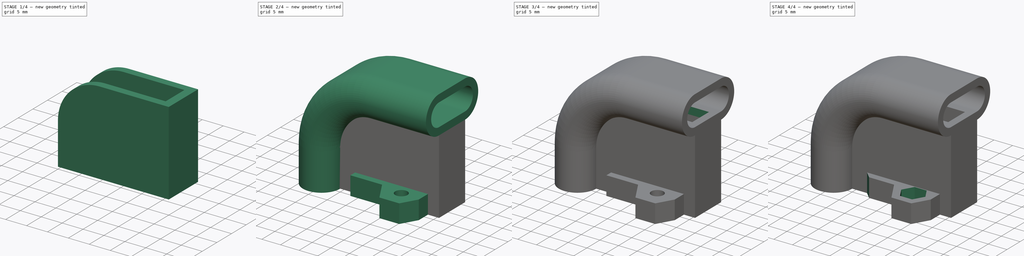
[diagram: build sequence overview — one tinted view per stage of 4, left to right]
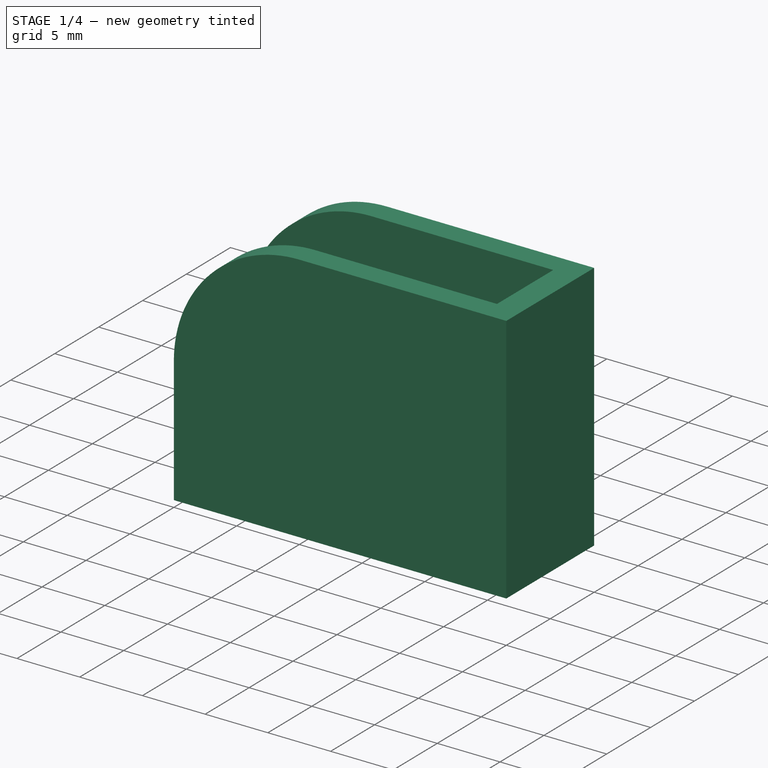
[diagram: stage 1 of 4 — iso view after this stage's code; geometry added in this stage tinted green]
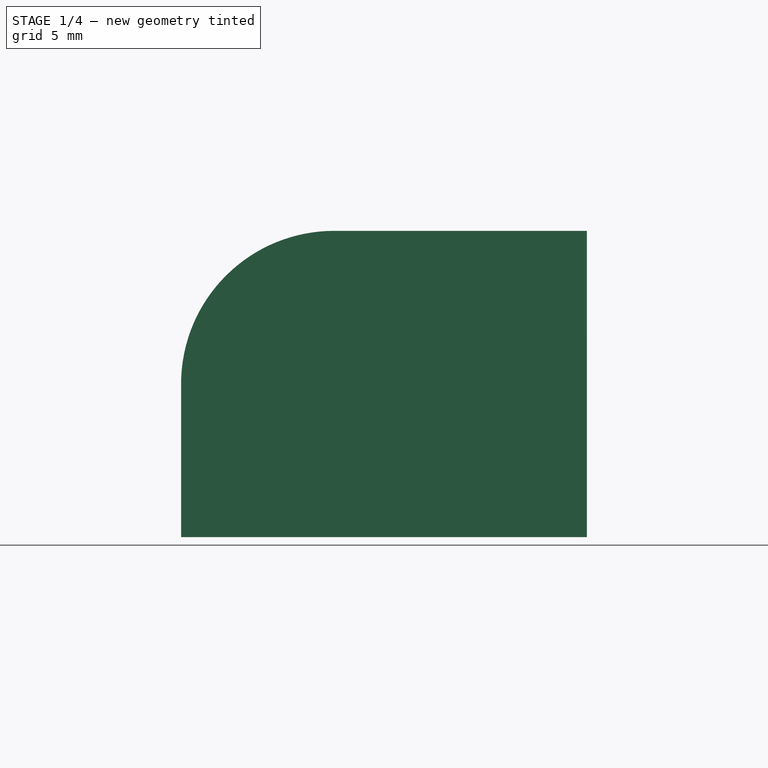
[diagram: stage 1 of 4 — front view after this stage's code; geometry added in this stage tinted green]
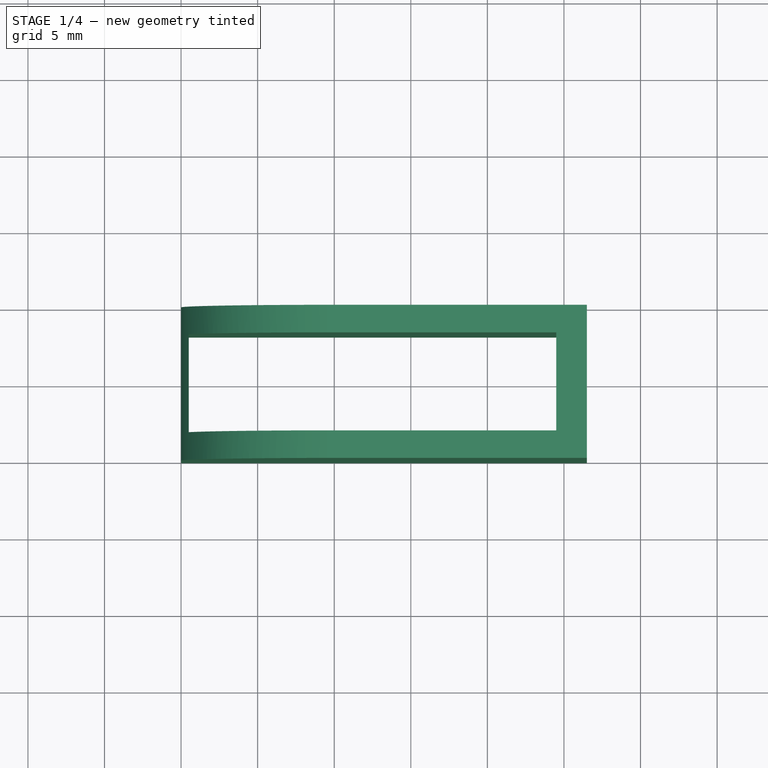
[diagram: stage 1 of 4 — top view after this stage's code; geometry added in this stage tinted green]
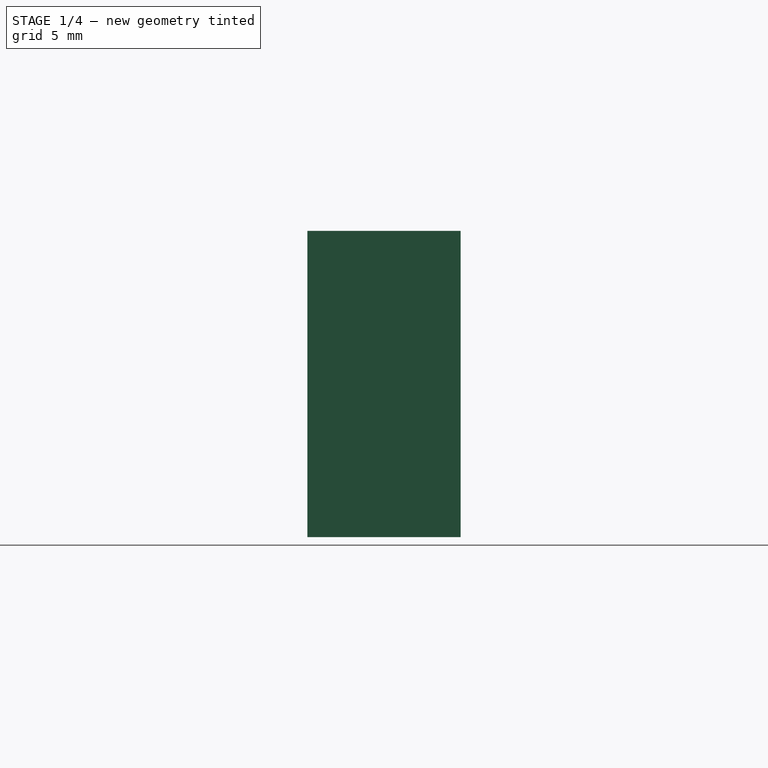
[diagram: stage 1 of 4 — right view after this stage's code; geometry added in this stage tinted green]
FCSTD DOCUMENT  (FreeCAD 0.19R24276 (Git))
Label: Z-axis_endstop_support
License: All rights reserved
LicenseURL: http://en.wikipedia.org/wiki/All_rights_reserved
objects: Sketcher::SketchObject×8, PartDesign::Pocket×4, PartDesign::Pad×2, PartDesign::AdditivePipe×1, PartDesign::Mirrored×1, PartDesign::Fillet×1, PartDesign::Chamfer×1, PartDesign::Body×1
note: 28 computed .brp shape members not serialized (recipe doc carries the construction recipe); baked Part::Feature solids carry a one-line shape summary decoded from their .brp

FEATURE [Sketcher::SketchObject] Sketch
  FullyConstrained = true
  MapMode = 5
  Support = -> [XY_Plane]
  sketch-geometry (8):
    g0: LineSegment StartX=5 StartY=5 StartZ=0 EndX=31.5 EndY=5 EndZ=0
    g1: LineSegment StartX=31.5 StartY=5 StartZ=0 EndX=31.5 EndY=-5 EndZ=0
    g2: LineSegment StartX=31.5 StartY=-5 StartZ=0 EndX=5 EndY=-5 EndZ=0
    g3: LineSegment StartX=29.5 StartY=3.2 StartZ=0 EndX=5.5 EndY=3.2 EndZ=0
    g4: LineSegment StartX=5.5 StartY=3.2 StartZ=0 EndX=5.5 EndY=-3.2 EndZ=0
    g5: LineSegment StartX=5.5 StartY=-3.2 StartZ=0 EndX=29.5 EndY=-3.2 EndZ=0
    g6: LineSegment StartX=29.5 StartY=-3.2 StartZ=0 EndX=29.5 EndY=3.2 EndZ=0
    g7: LineSegment StartX=5 StartY=5 StartZ=0 EndX=5 EndY=-5 EndZ=0
  constraints (22):
    c: Horizontal(g0)
    c: Coincident(g0,g1)
    c: Vertical(g1)
    c: Coincident(g1,g2)
    c: Horizontal(g2)
    c: Coincident(g3,g4)
    c: Coincident(g4,g5)
    c: Coincident(g5,g6)
    c: Coincident(g6,g3)
    c: Horizontal(g3)
    c: Horizontal(g5)
    c: Vertical(g6)
    c: Symmetric(g3,g4,g-1)
    c: DistanceX(g5,g1) = 2
    c: DistanceY(g6,g6) = 6.4
    c: Coincident(g7,g0)
    c: Coincident(g7,g2)
    c: DistanceX(g2) = 5
    c: Symmetric(g0,g2,g-1)
    c: DistanceY(g7,g7) = 10
    c: DistanceX(g5,g5) = 24
    c: DistanceX(g2,g4) = 0.5
FEATURE [PartDesign::Pad] Pad
  Direction = (1,1,1)
  Length = 20
  Length2 = 100
  Profile = -> Sketch
  Type = 0
FEATURE [Sketcher::SketchObject] Sketch001
  FullyConstrained = true
  MapMode = 5
  Placement = pos=(0,0,0) rot=(1,0,0;3.14159rad)
  Support = -> [Pad]
  sketch-geometry (8):
    g0: ArcOfCircle CenterX=0 CenterY=5 CenterZ=0 NormalX=0 NormalY=0 NormalZ=1 AngleXU=0 Radius=5 StartAngle=1e-16 EndAngle=3.14159
    g1: ArcOfCircle CenterX=0 CenterY=-5 CenterZ=0 NormalX=0 NormalY=0 NormalZ=1 AngleXU=0 Radius=5 StartAngle=3.14159 EndAngle=6.28319
    g2: LineSegment StartX=-5 StartY=5 StartZ=0 EndX=-5 EndY=-5 EndZ=0
    g3: LineSegment StartX=5 StartY=5 StartZ=0 EndX=5 EndY=-5 EndZ=0
    g4: ArcOfCircle CenterX=0 CenterY=5 CenterZ=0 NormalX=0 NormalY=0 NormalZ=1 AngleXU=0 Radius=3 StartAngle=2e-16 EndAngle=3.14159
    g5: ArcOfCircle CenterX=0 CenterY=-5 CenterZ=0 NormalX=0 NormalY=0 NormalZ=1 AngleXU=0 Radius=3 StartAngle=3.14159 EndAngle=6.28319
    g6: LineSegment StartX=-3 StartY=5 StartZ=0 EndX=-3 EndY=-5 EndZ=0
    g7: LineSegment StartX=3 StartY=5 StartZ=0 EndX=3 EndY=-5 EndZ=0
  constraints (18):
    c: Tangent(g0,g3) = 1.5708
    c: Tangent(g0,g2) = -1.5708
    c: Tangent(g2,g1) = -1.5708
    c: Tangent(g3,g1) = 1.5708
    c: Vertical(g2)
    c: Equal(g0,g1)
    c: Symmetric(g0,g1,g-1)
    c: DistanceY(g2,g2) = 10
    c: Radius(g0) = 5
    c: Tangent(g4,g7) = 1.5708
    c: Tangent(g4,g6) = -1.5708
    c: Tangent(g6,g5) = -1.5708
    c: Tangent(g7,g5) = 1.5708
    c: Vertical(g6)
    c: Equal(g4,g5)
    c: Coincident(g4,g0)
    c: DistanceY(g6,g6) = 10
    c: Radius(g4) = 3
FEATURE [Sketcher::SketchObject] Sketch002
  FullyConstrained = true
  MapMode = 5
  Placement = pos=(0,0,0) rot=(1,0,0;1.5708rad)
  Support = -> [XZ_Plane]
  sketch-geometry (3):
    g0: ArcOfCircle CenterX=15 CenterY=9.99999 CenterZ=0 NormalX=0 NormalY=0 NormalZ=1 AngleXU=0 Radius=15 StartAngle=1.5708 EndAngle=3.14159
    g1: LineSegment StartX=15 StartY=25 StartZ=0 EndX=31.5 EndY=25 EndZ=0
    g2: LineSegment StartX=0 StartY=10 StartZ=0 EndX=0 EndY=0 EndZ=0
  constraints (9):
    c: Horizontal(g1)
    c: PointOnObject(g0,g-2)
    c: DistanceY(g0) = 10
    c: DistanceX(g1) = 31.5
    c: Tangent(g0,g-2)
    c: Tangent(g1,g0) = 1.5708
    c: DistanceY(g1) = 25
    c: Coincident(g2,g0)
    c: Coincident(g2,g-1)
FEATURE [Sketcher::SketchObject] Sketch003
  FullyConstrained = true
  MapMode = 5
  Placement = pos=(0,0,0) rot=(1,0,0;1.5708rad)
  Support = -> [XZ_Plane]
  sketch-geometry (7):
    g0: LineSegment StartX=5 StartY=0 StartZ=0 EndX=5 EndY=10 EndZ=0
    g1: LineSegment StartX=15 StartY=20 StartZ=0 EndX=35.5 EndY=20 EndZ=0
    g2: ArcOfCircle CenterX=15 CenterY=10 CenterZ=0 NormalX=0 NormalY=0 NormalZ=1 AngleXU=0 Radius=10 StartAngle=1.5708 EndAngle=3.14159
    g3: LineSegment StartX=35.5 StartY=20 StartZ=0 EndX=35.5 EndY=25 EndZ=0
    g4: LineSegment StartX=35.5 StartY=25 StartZ=0 EndX=0 EndY=25 EndZ=0
    g5: LineSegment StartX=0 StartY=25 StartZ=0 EndX=0 EndY=0 EndZ=0
    g6: LineSegment StartX=0 StartY=0 StartZ=0 EndX=5 EndY=0 EndZ=0
  constraints (19):
    c: Vertical(g0)
    c: Horizontal(g1)
    c: Tangent(g2,g0) = 1.5708
    c: Tangent(g2,g1) = 1.5708
    c: DistanceX(g1) = 35.5
    c: DistanceY(g0,g0) = 10
    c: DistanceY(g1) = 20
    c: Coincident(g1,g3)
    c: Coincident(g3,g4)
    c: Horizontal(g4)
    c: Coincident(g4,g5)
    c: Vertical(g5)
    c: Vertical(g3)
    c: DistanceY(g3,g3) = 5
    c: Coincident(g5,g-1)
    c: Coincident(g6,g5)
    c: Coincident(g6,g0)
    c: Horizontal(g6)
    c: DistanceX(g6,g6) = 5
FEATURE [PartDesign::Pocket] Pocket
  BaseFeature = -> Pad
  Length = 5
  Length2 = 100
  Midplane = true
  Profile = -> Sketch003
  Type = 1
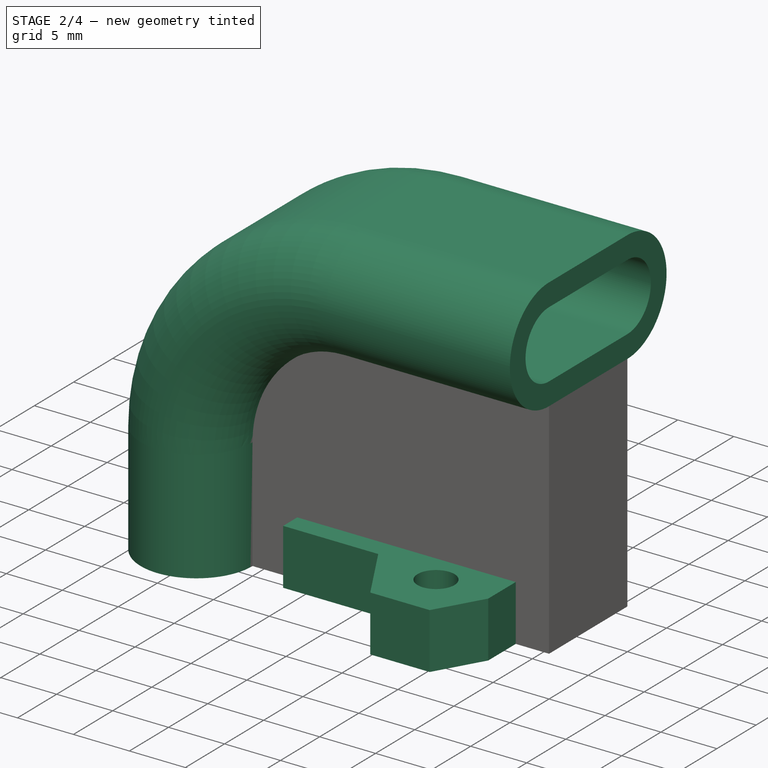
[diagram: stage 2 of 4 — iso view after this stage's code; geometry added in this stage tinted green]
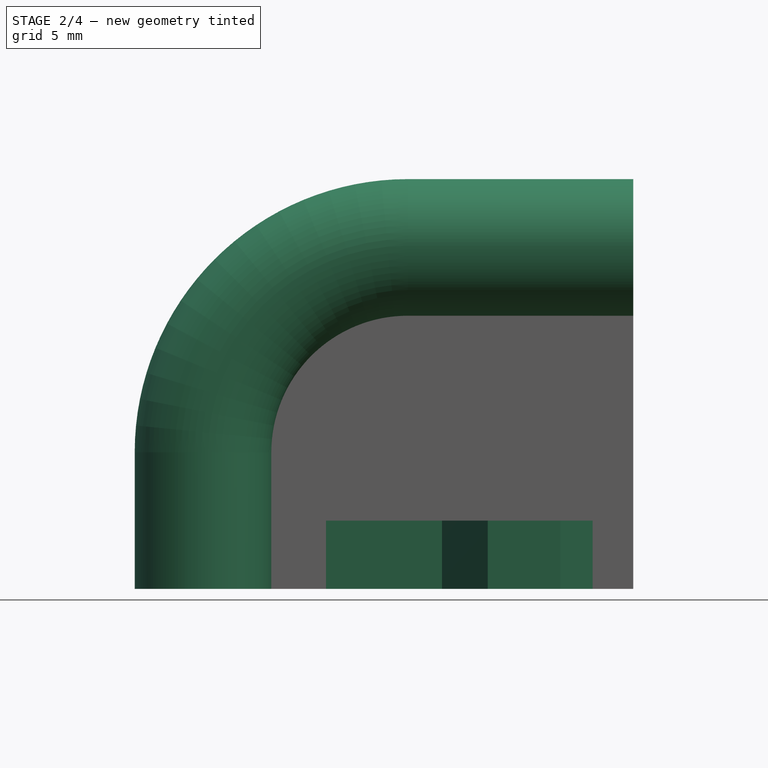
[diagram: stage 2 of 4 — front view after this stage's code; geometry added in this stage tinted green]
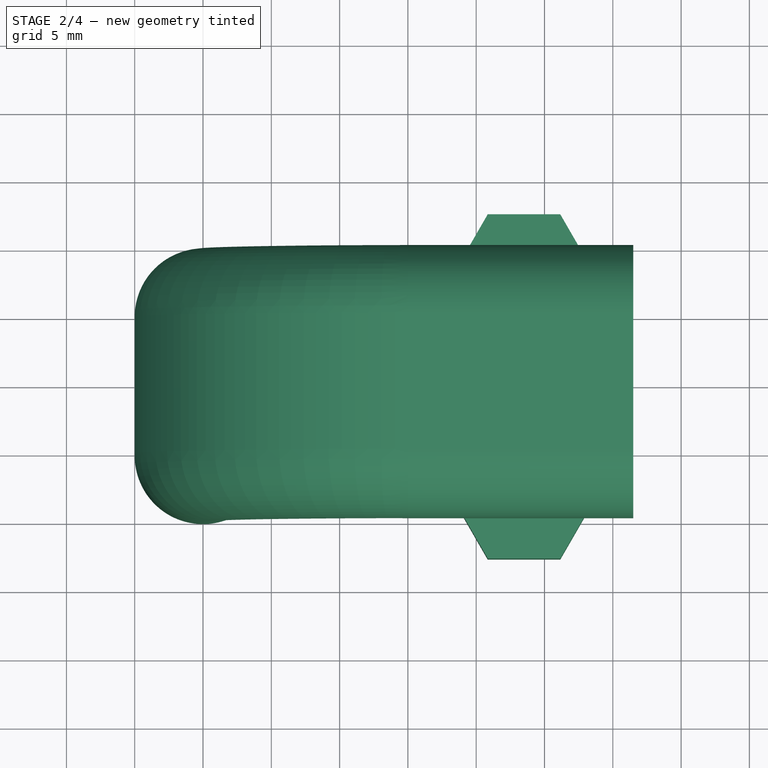
[diagram: stage 2 of 4 — top view after this stage's code; geometry added in this stage tinted green]
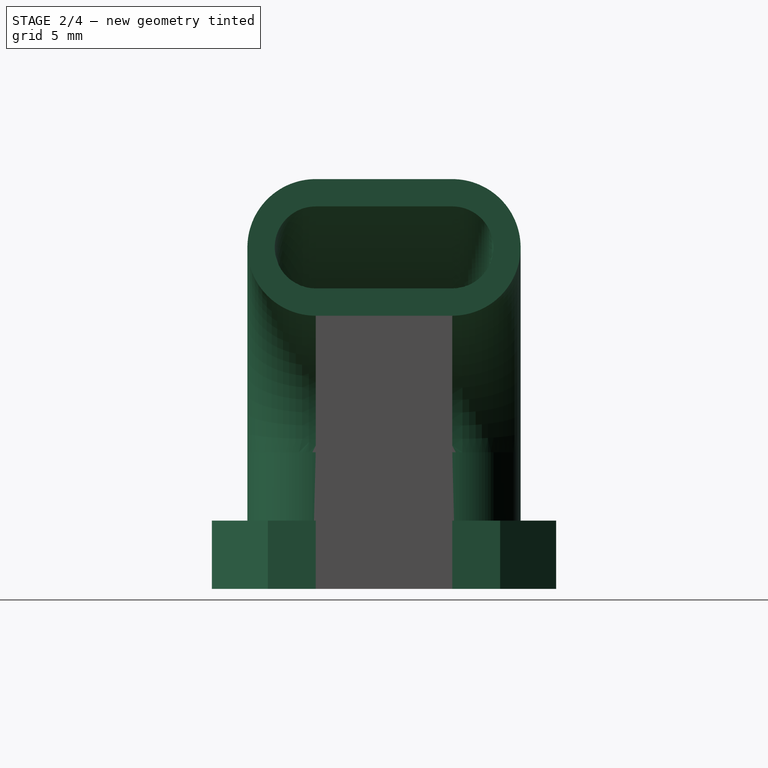
[diagram: stage 2 of 4 — right view after this stage's code; geometry added in this stage tinted green]
FEATURE [PartDesign::AdditivePipe] AdditivePipe
  AuxilleryCurvelinear = true
  AuxillerySpineTangent = false
  BaseFeature = -> Pocket
  Binormal = (0,0,0)
  Mode = 0
  Profile = -> Sketch001
  Spine = -> Sketch002
  SpineTangent = false
  Transformation = 0
  Transition = 0
FEATURE [Sketcher::SketchObject] Sketch004
  FullyConstrained = true
  MapMode = 5
  Placement = pos=(0,0,0) rot=(1,0,0;3.14159rad)
  Support = -> [AdditivePipe]
  sketch-geometry (17):
    g0: Circle CenterX=23.5 CenterY=8 CenterZ=0 NormalX=0 NormalY=0 NormalZ=1 AngleXU=0 Radius=1.65
    g1: LineSegment StartX=25.1166 StartY=5.2 StartZ=0 EndX=26.7332 EndY=8 EndZ=0
    g2: LineSegment StartX=26.7332 StartY=8 StartZ=0 EndX=25.1166 EndY=10.8 EndZ=0
    g3: LineSegment StartX=25.1166 StartY=10.8 StartZ=0 EndX=21.8834 EndY=10.8 EndZ=0
    g4: LineSegment StartX=21.8834 StartY=10.8 StartZ=0 EndX=20.2668 EndY=8 EndZ=0
    g5: LineSegment StartX=20.2668 StartY=8 StartZ=0 EndX=21.8834 EndY=5.2 EndZ=0
    g6: LineSegment StartX=21.8834 StartY=5.2 StartZ=0 EndX=25.1166 EndY=5.2 EndZ=0
    g7: Circle CenterX=23.5 CenterY=8 CenterZ=0 NormalX=0 NormalY=0 NormalZ=1 AngleXU=0 Radius=3.23316
    g8: LineSegment StartX=28.5229 StartY=8.5 StartZ=0 EndX=26.1558 EndY=12.6 EndZ=0
    g9: LineSegment StartX=26.1558 StartY=12.6 StartZ=0 EndX=20.8442 EndY=12.6 EndZ=0
    g10: LineSegment StartX=20.8442 StartY=12.6 StartZ=0 EndX=17.4956 EndY=6.8 EndZ=0
    g11: LineSegment StartX=17.4956 StartY=6.8 StartZ=0 EndX=9 EndY=6.8 EndZ=0
    g12: LineSegment StartX=9 StartY=6.8 StartZ=0 EndX=9 EndY=5 EndZ=0
    g13: LineSegment StartX=9 StartY=5 StartZ=0 EndX=28.5229 EndY=5 EndZ=0
    g14: LineSegment StartX=28.5229 StartY=8.5 StartZ=0 EndX=28.5229 EndY=5 EndZ=0
    g15: LineSegment StartX=21.8834 StartY=10.8 StartZ=0 EndX=20.3246 EndY=11.7 EndZ=0
    g16: LineSegment StartX=26.7332 StartY=8 StartZ=0 EndX=28.292 EndY=8.9 EndZ=0
  constraints (46):
    c: Coincident(g1,g2)
    c: Coincident(g2,g3)
    c: Coincident(g3,g4)
    c: Coincident(g4,g5)
    c: Coincident(g5,g6)
    c: Coincident(g6,g1)
    c: Equal(g1, g2-g6) x5
    c: PointOnObject(g1,g7)
    c: PointOnObject(g2,g7)
    c: PointOnObject(g3,g7)
    c: PointOnObject(g4,g7)
    c: PointOnObject(g5,g7)
    c: PointOnObject(g6,g7)
    c: Coincident(g7,g0)
    c: Horizontal(g6)
    c: Coincident(g8,g9)
    c: Horizontal(g9)
    c: Coincident(g9,g10)
    c: Coincident(g10,g11)
    c: Horizontal(g11)
    c: Coincident(g11,g12)
    c: Vertical(g12)
    c: Coincident(g12,g13)
    c: Horizontal(g13)
    c: Parallel(g4,g10)
    c: Parallel(g2,g8)
    c: DistanceY(g2,g8) = 1.8
    c: Coincident(g14,g8)
    c: Coincident(g14,g13)
    c: Vertical(g14)
    c: DistanceY(g5,g3) = 5.6
    c: DistanceY(g0) = 8
    c: DistanceY(g12,g12) = 1.8
    c: Coincident(g15,g3)
    c: PointOnObject(g15,g10)
    c: Perpendicular(g10,g15)
    c: Distance(g15) = 1.8
    c: Coincident(g16,g1)
    c: PointOnObject(g16,g8)
    c: Perpendicular(g8,g16)
    c: Distance(g16) = 1.8
    c: DistanceX(g12) = 9
    c: DistanceX(g0) = 23.5
    c: Radius(g0) = 1.65
    c: DistanceY(g14,g14) = 3.5
    c: DistanceY(g13) = 5
FEATURE [PartDesign::Pad] Pad001
  BaseFeature = -> AdditivePipe
  Direction = (1,1,1)
  Length = 5
  Length2 = 100
  Profile = -> Sketch004
  Reversed = true
  Type = 0
FEATURE [PartDesign::Mirrored] Mirrored
  BaseFeature = -> Pad001
  MirrorPlane = -> XZ_Plane
  Originals = -> [Pad001]
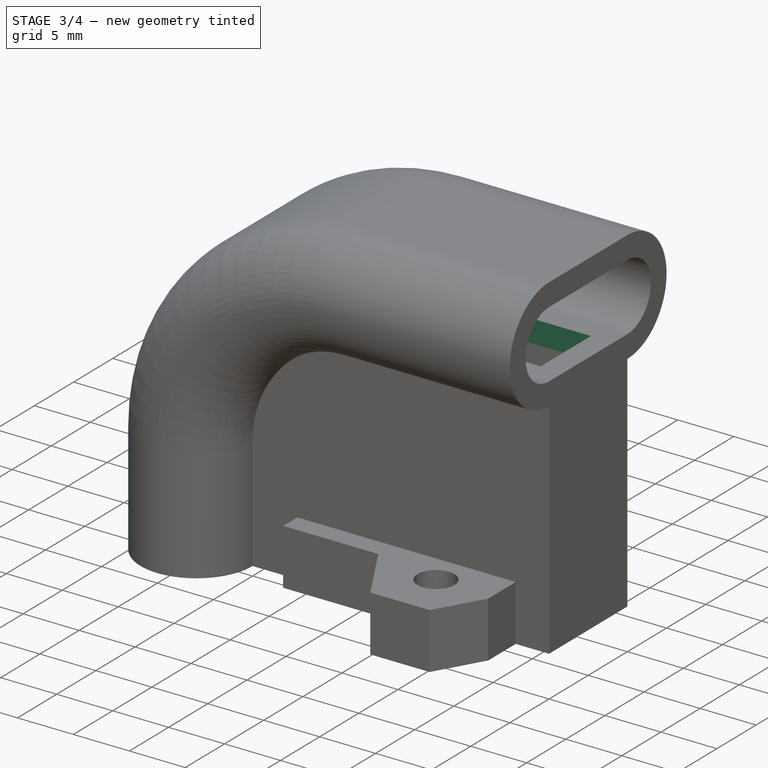
[diagram: stage 3 of 4 — iso view after this stage's code; geometry added in this stage tinted green]
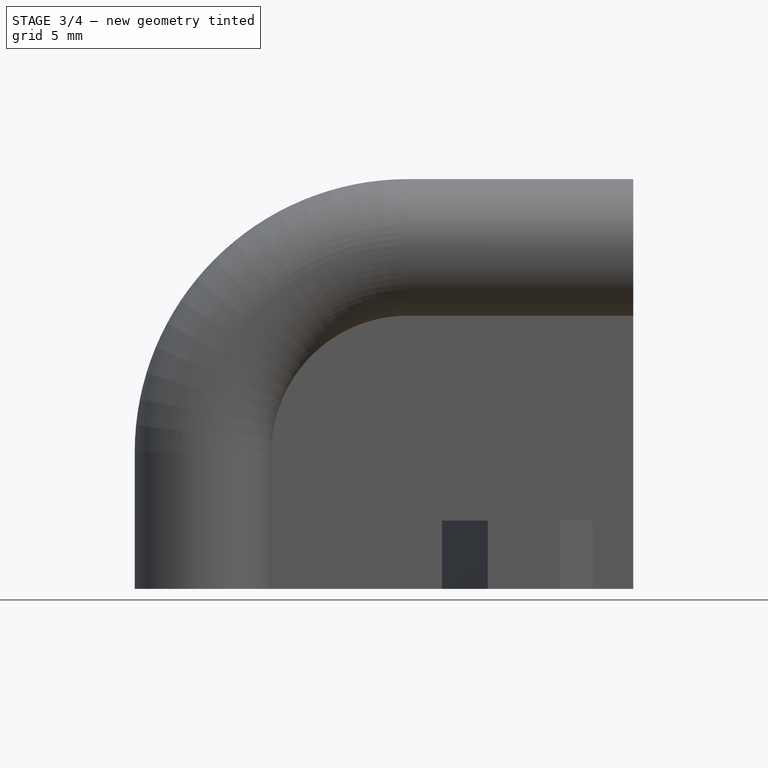
[diagram: stage 3 of 4 — front view after this stage's code; geometry added in this stage tinted green]
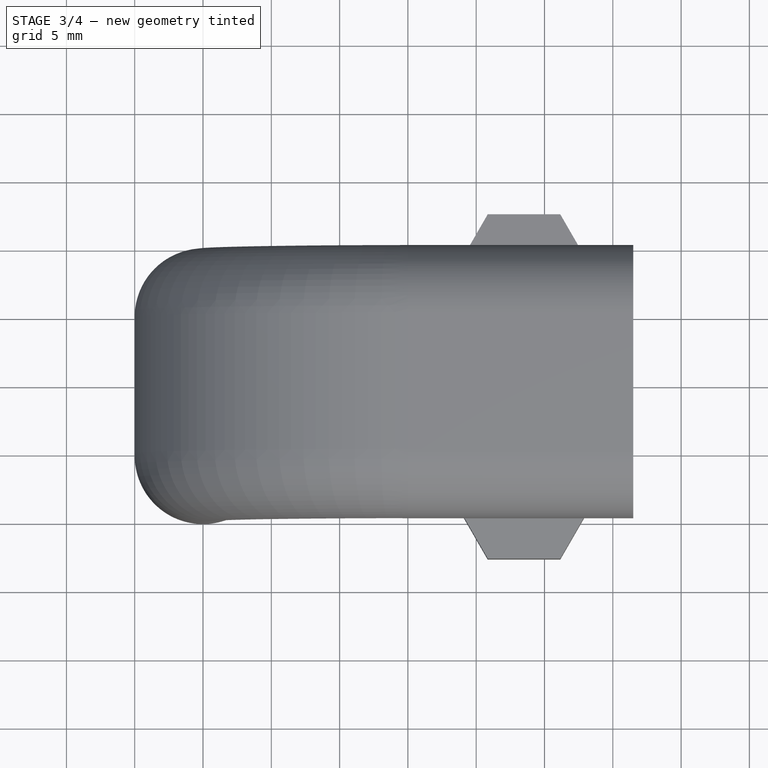
[diagram: stage 3 of 4 — top view after this stage's code; geometry added in this stage tinted green]
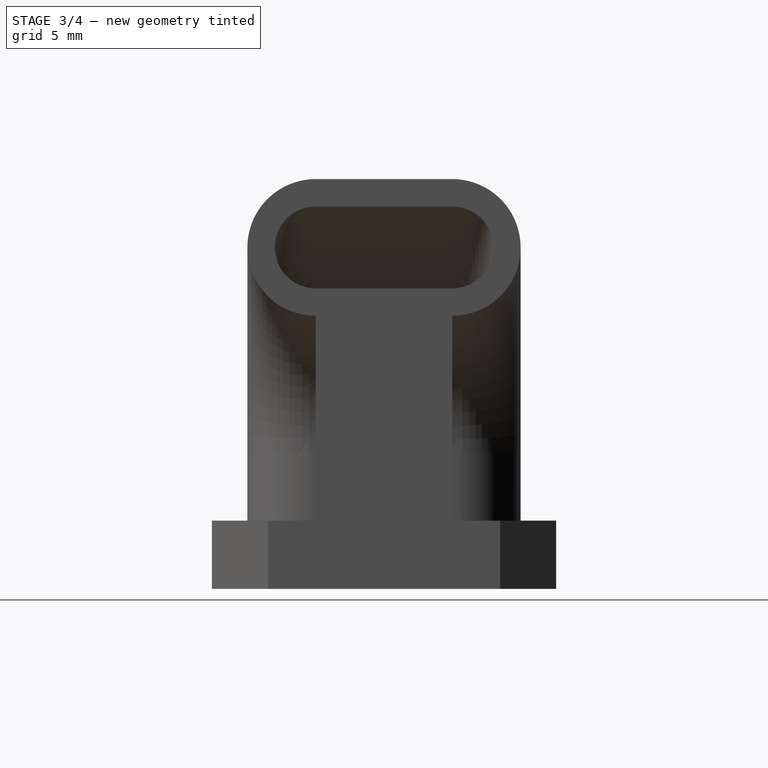
[diagram: stage 3 of 4 — right view after this stage's code; geometry added in this stage tinted green]
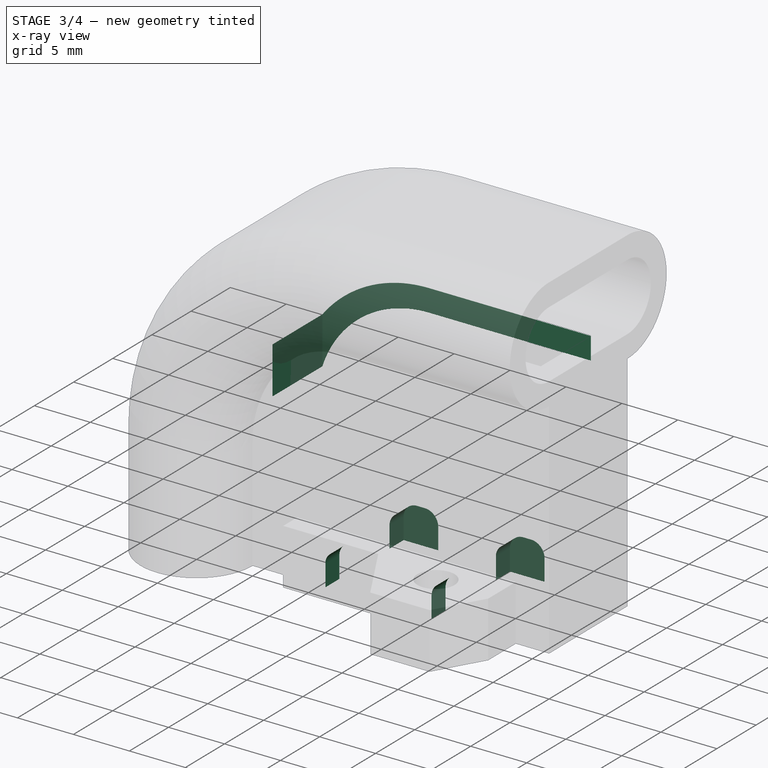
[diagram: stage 3 of 4 — x-ray composite at the iso view; earlier geometry ghosted, this stage's added geometry solid]
FEATURE [Sketcher::SketchObject] Sketch005
  FullyConstrained = true
  MapMode = 5
  Placement = pos=(0,0,0) rot=(1,0,0;3.14159rad)
  Support = -> [Mirrored]
  sketch-geometry (8):
    g0: LineSegment StartX=11.5 StartY=5 StartZ=0 EndX=14.6 EndY=5 EndZ=0
    g1: LineSegment StartX=14.6 StartY=5 StartZ=0 EndX=14.6 EndY=-5 EndZ=0
    g2: LineSegment StartX=14.6 StartY=-5 StartZ=0 EndX=11.5 EndY=-5 EndZ=0
    g3: LineSegment StartX=11.5 StartY=-5 StartZ=0 EndX=11.5 EndY=5 EndZ=0
    g4: LineSegment StartX=21 StartY=5 StartZ=0 EndX=24.1 EndY=5 EndZ=0
    g5: LineSegment StartX=24.1 StartY=5 StartZ=0 EndX=24.1 EndY=-5 EndZ=0
    g6: LineSegment StartX=24.1 StartY=-5 StartZ=0 EndX=21 EndY=-5 EndZ=0
    g7: LineSegment StartX=21 StartY=-5 StartZ=0 EndX=21 EndY=5 EndZ=0
  constraints (23):
    c: Coincident(g0,g1)
    c: Coincident(g1,g2)
    c: Coincident(g2,g3)
    c: Coincident(g3,g0)
    c: Horizontal(g0)
    c: Horizontal(g2)
    c: Vertical(g1)
    c: Coincident(g4,g5)
    c: Coincident(g5,g6)
    c: Coincident(g6,g7)
    c: Coincident(g7,g4)
    c: Horizontal(g4)
    c: Horizontal(g6)
    c: Vertical(g5)
    c: Vertical(g7)
    c: PointOnObject(g6,g2)
    c: Symmetric(g0,g2,g-1)
    c: Equal(g0,g4)
    c: DistanceX(g0,g4) = 9.5
    c: DistanceX(g2,g2) = 3.1
    c: DistanceY(g3,g3) = 10
    c: DistanceX(g2) = 11.5
    c: Equal(g7,g1)
FEATURE [PartDesign::Pocket] Pocket001
  BaseFeature = -> Mirrored
  Length = 3.1
  Length2 = 100
  Profile = -> Sketch005
  Type = 0
FEATURE [PartDesign::Fillet] Fillet
  Base = -> Pocket001 [Edge101,Edge75,Edge163,Edge165,Edge171,Edge162,Edge118,Edge116]
  BaseFeature = -> Pocket001
  Radius = 1.2
  SupportTransform = false
FEATURE [Sketcher::SketchObject] Sketch006
  FullyConstrained = true
  MapMode = 5
  Placement = pos=(0,0,0) rot=(1,0,0;3.14159rad)
  Support = -> [Fillet]
  sketch-geometry (4):
    g0: LineSegment StartX=5.5 StartY=3.2 StartZ=0 EndX=29.5 EndY=3.2 EndZ=0
    g1: LineSegment StartX=29.5 StartY=3.2 StartZ=0 EndX=29.5 EndY=-3.2 EndZ=0
    g2: LineSegment StartX=29.5 StartY=-3.2 StartZ=0 EndX=5.5 EndY=-3.2 EndZ=0
    g3: LineSegment StartX=5.5 StartY=-3.2 StartZ=0 EndX=5.5 EndY=3.2 EndZ=0
  constraints (11):
    c: Coincident(g0,g1)
    c: Coincident(g1,g2)
    c: Coincident(g2,g3)
    c: Coincident(g3,g0)
    c: Horizontal(g0)
    c: Horizontal(g2)
    c: Vertical(g1)
    c: DistanceY(g1,g1) = 6.4
    c: Symmetric(g2,g0,g-1)
    c: DistanceX(g2) = 5.5
    c: DistanceX(g2,g2) = 24
FEATURE [PartDesign::Pocket] Pocket002
  BaseFeature = -> Fillet
  Length = 22
  Length2 = 100
  Profile = -> Sketch006
  Type = 0
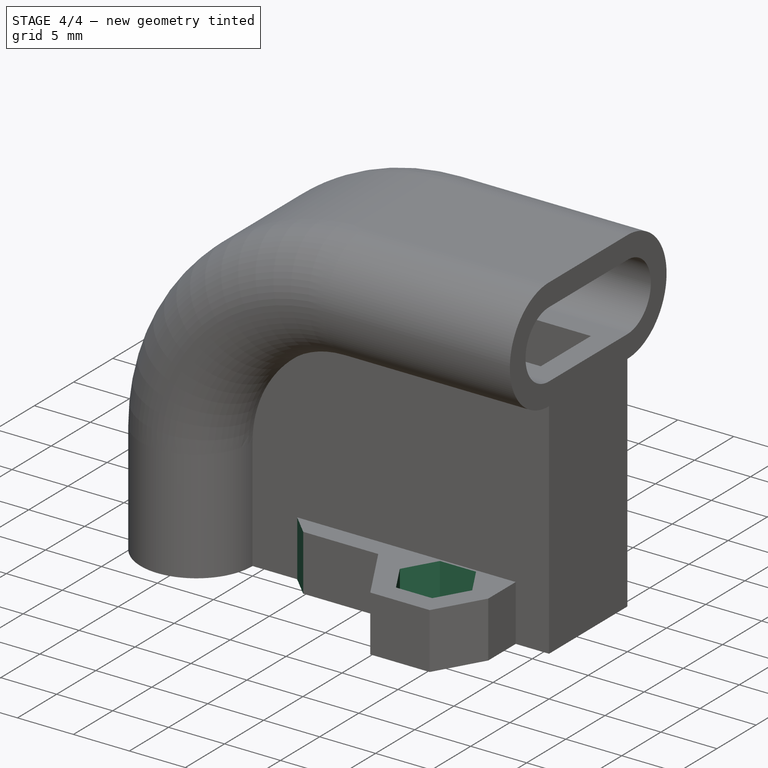
[diagram: stage 4 of 4 — iso view after this stage's code; geometry added in this stage tinted green]
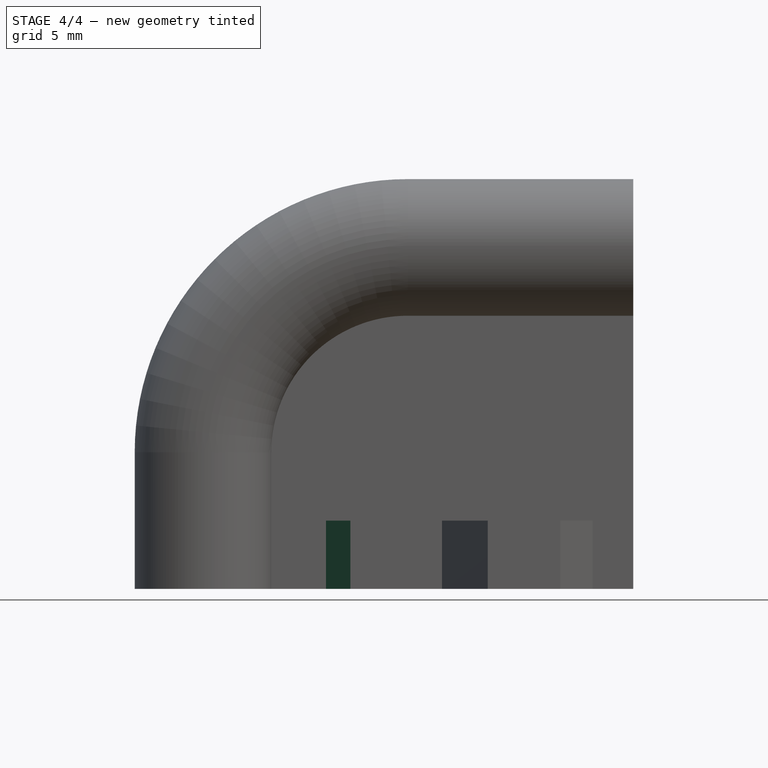
[diagram: stage 4 of 4 — front view after this stage's code; geometry added in this stage tinted green]
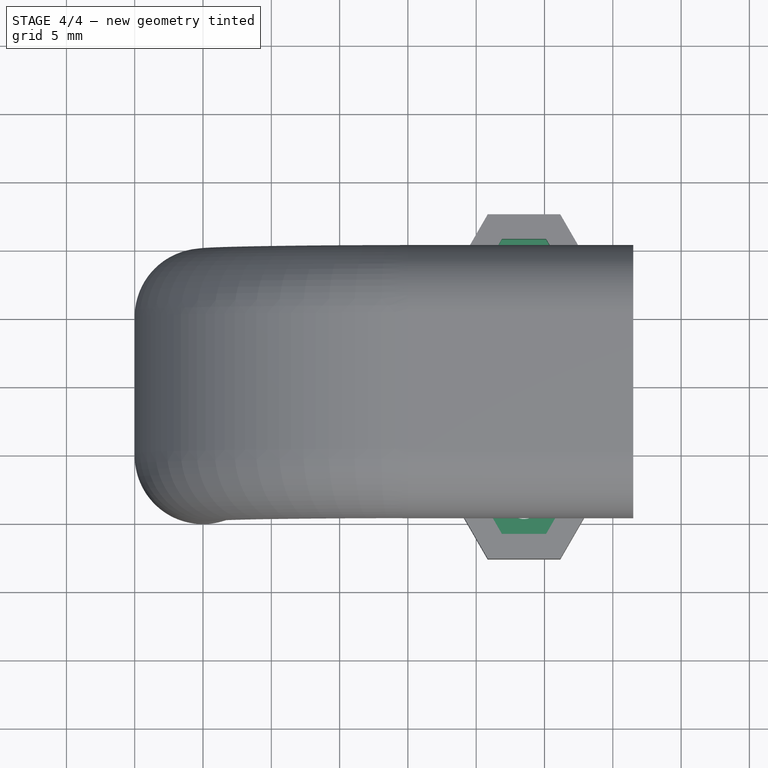
[diagram: stage 4 of 4 — top view after this stage's code; geometry added in this stage tinted green]
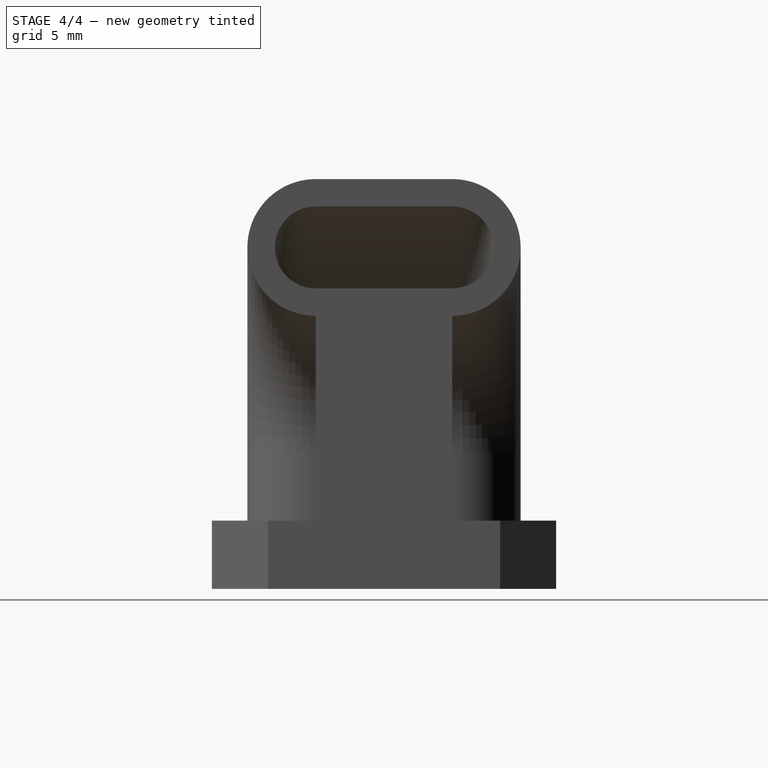
[diagram: stage 4 of 4 — right view after this stage's code; geometry added in this stage tinted green]
FEATURE [Sketcher::SketchObject] Sketch007
  FullyConstrained = true
  MapMode = 5
  Placement = pos=(0,0,5) rot=(0,0,1;0rad)
  Support = -> [Pocket002]
  sketch-geometry (14):
    g0: LineSegment StartX=26.7332 StartY=-8 StartZ=0 EndX=25.1166 EndY=-5.2 EndZ=0
    g1: LineSegment StartX=25.1166 StartY=-5.2 StartZ=0 EndX=21.8834 EndY=-5.2 EndZ=0
    g2: LineSegment StartX=21.8834 StartY=-5.2 StartZ=0 EndX=20.2668 EndY=-8 EndZ=0
    g3: LineSegment StartX=20.2668 StartY=-8 StartZ=0 EndX=21.8834 EndY=-10.8 EndZ=0
    g4: LineSegment StartX=21.8834 StartY=-10.8 StartZ=0 EndX=25.1166 EndY=-10.8 EndZ=0
    g5: LineSegment StartX=25.1166 StartY=-10.8 StartZ=0 EndX=26.7332 EndY=-8 EndZ=0
    g6: Circle CenterX=23.5 CenterY=-8 CenterZ=0 NormalX=0 NormalY=0 NormalZ=1 AngleXU=0 Radius=3.23316
    g7: LineSegment StartX=25.1166 StartY=5.2 StartZ=0 EndX=26.7332 EndY=8 EndZ=0
    g8: LineSegment StartX=26.7332 StartY=8 StartZ=0 EndX=25.1166 EndY=10.8 EndZ=0
    g9: LineSegment StartX=25.1166 StartY=10.8 StartZ=0 EndX=21.8834 EndY=10.8 EndZ=0
    g10: LineSegment StartX=21.8834 StartY=10.8 StartZ=0 EndX=20.2668 EndY=8 EndZ=0
    g11: LineSegment StartX=20.2668 StartY=8 StartZ=0 EndX=21.8834 EndY=5.2 EndZ=0
    g12: LineSegment StartX=21.8834 StartY=5.2 StartZ=0 EndX=25.1166 EndY=5.2 EndZ=0
    g13: Circle CenterX=23.5 CenterY=8 CenterZ=0 NormalX=0 NormalY=0 NormalZ=1 AngleXU=0 Radius=3.23316
  constraints (33):
    c: Coincident(g0,g1)
    c: Coincident(g1,g2)
    c: Coincident(g2,g3)
    c: Coincident(g3,g4)
    c: Coincident(g4,g5)
    c: Coincident(g5,g0)
    c: Equal(g0, g1-g5) x5
    c: PointOnObject(g0,g6)
    c: PointOnObject(g1,g6)
    c: PointOnObject(g2,g6)
    c: PointOnObject(g3,g6)
    c: PointOnObject(g4,g6)
    c: PointOnObject(g5,g6)
    c: Coincident(g7,g8)
    c: Coincident(g8,g9)
    c: Coincident(g9,g10)
    c: Coincident(g10,g11)
    c: Coincident(g11,g12)
    c: Coincident(g12,g7)
    c: Equal(g7, g8-g12) x5
    c: PointOnObject(g7,g13)
    c: PointOnObject(g8,g13)
    c: PointOnObject(g9,g13)
    c: PointOnObject(g10,g13)
    c: PointOnObject(g11,g13)
    c: PointOnObject(g12,g13)
    c: Horizontal(g12)
    c: Horizontal(g4)
    c: Symmetric(g6,g13,g-1)
    c: DistanceY(g6,g13) = 16
    c: DistanceY(g7,g8) = 5.6
    c: DistanceX(g6) = 23.5
    c: Equal(g6,g13)
FEATURE [PartDesign::Pocket] Pocket003
  BaseFeature = -> Pocket002
  Length = 3
  Length2 = 100
  Profile = -> Sketch007
  Type = 0
FEATURE [PartDesign::Chamfer] Chamfer
  Angle = 45
  Base = -> Pocket003 [Edge131,Edge192]
  BaseFeature = -> Pocket003
  ChamferType = 0
  FlipDirection = false
  Size = 1.79
  Size2 = 1
  SupportTransform = false
FEATURE [PartDesign::Body] Body
  Group = -> [Sketch,Pad,Sketch001,Sketch002,Sketch003,Pocket,AdditivePipe,Sketch004,Pad001,Mirrored,Sketch005,Pocket001,Fillet,Sketch006,Pocket002,Sketch007,Pocket003,Chamfer]
  Origin = -> Origin
  Tip = -> Chamfer
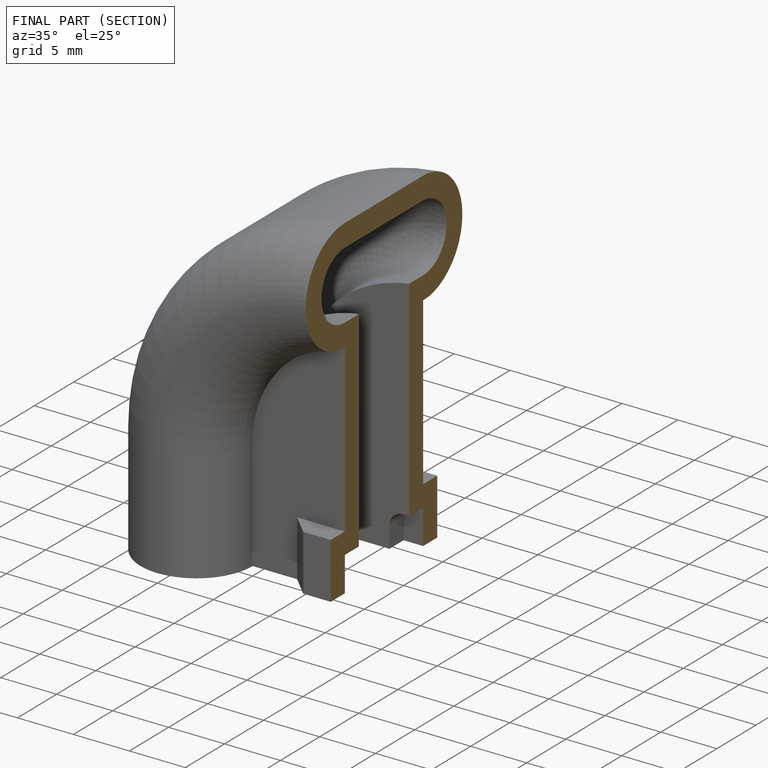
[diagram: finished part — half-section view (interior)]
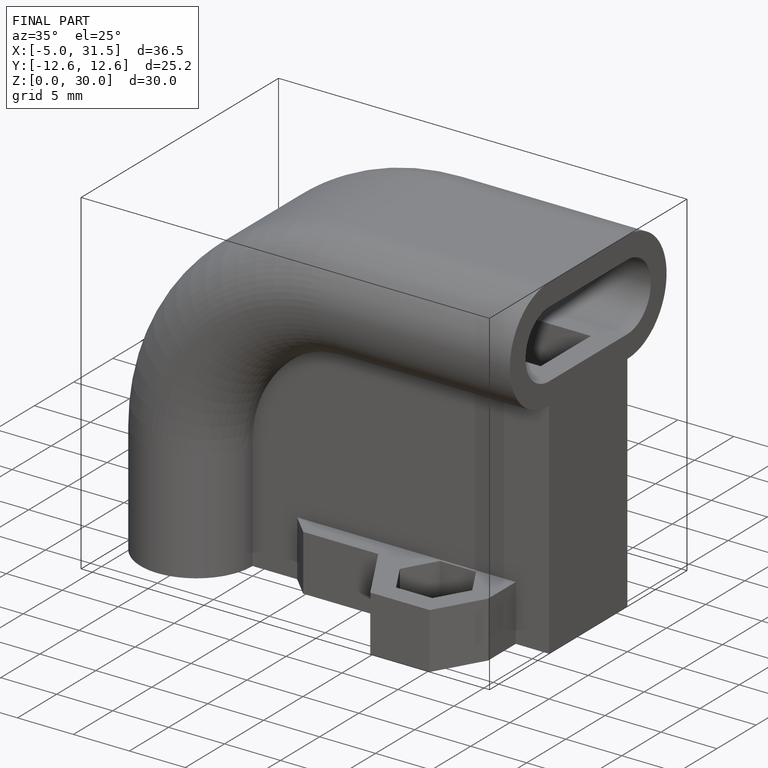
[diagram: finished part — iso view with bounding-box wireframe]
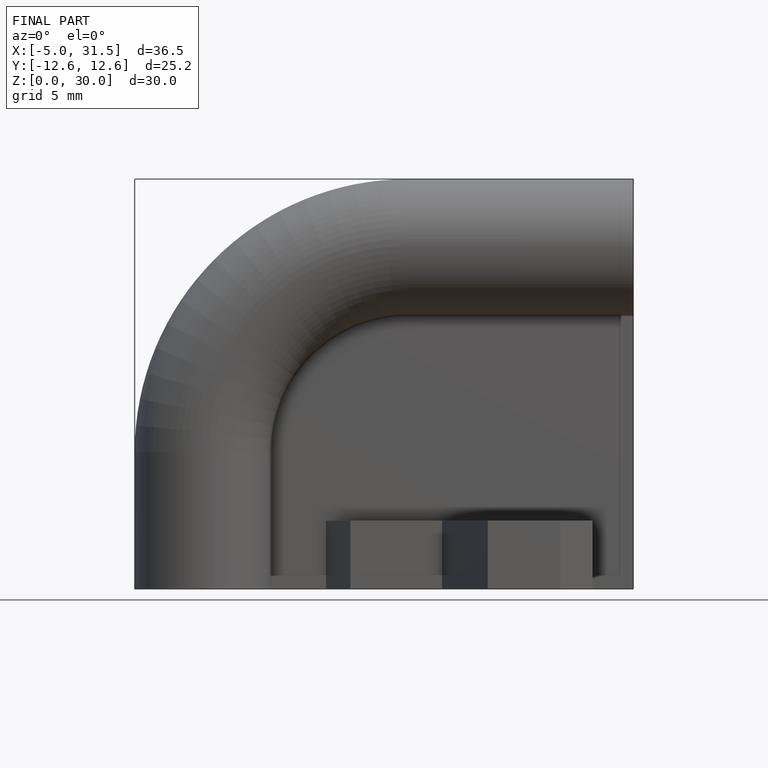
[diagram: finished part — front view with bounding-box wireframe]
